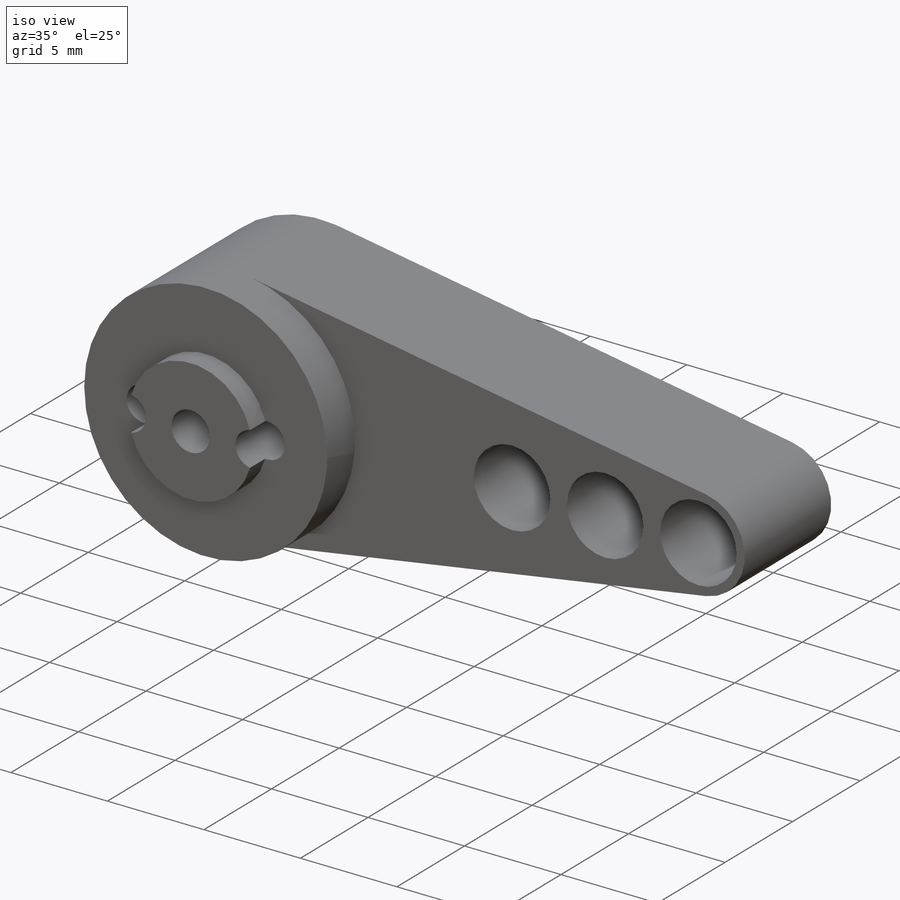
[diagram: iso view]
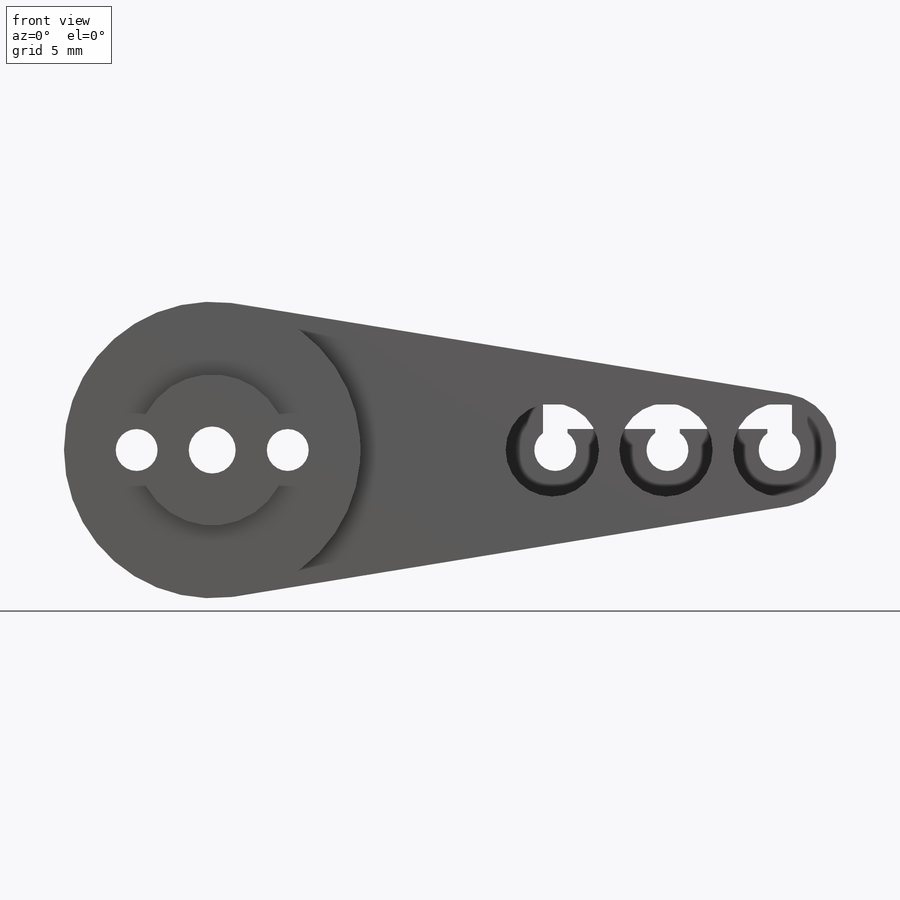
[diagram: front view]
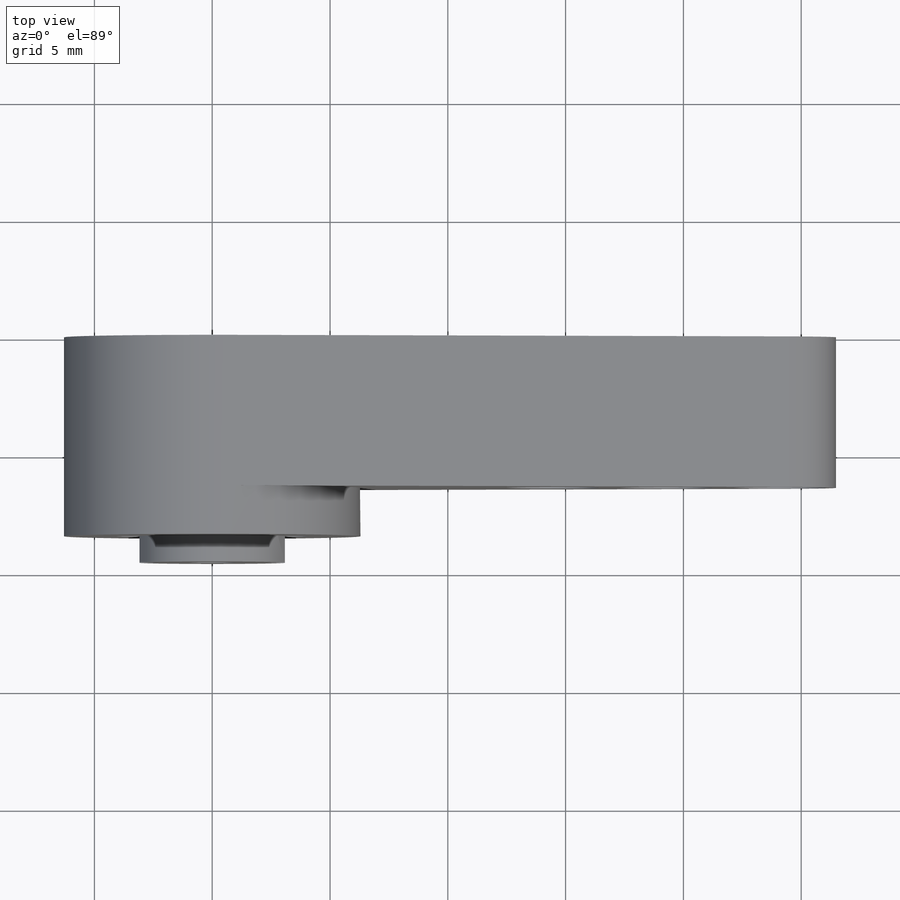
[diagram: top view]
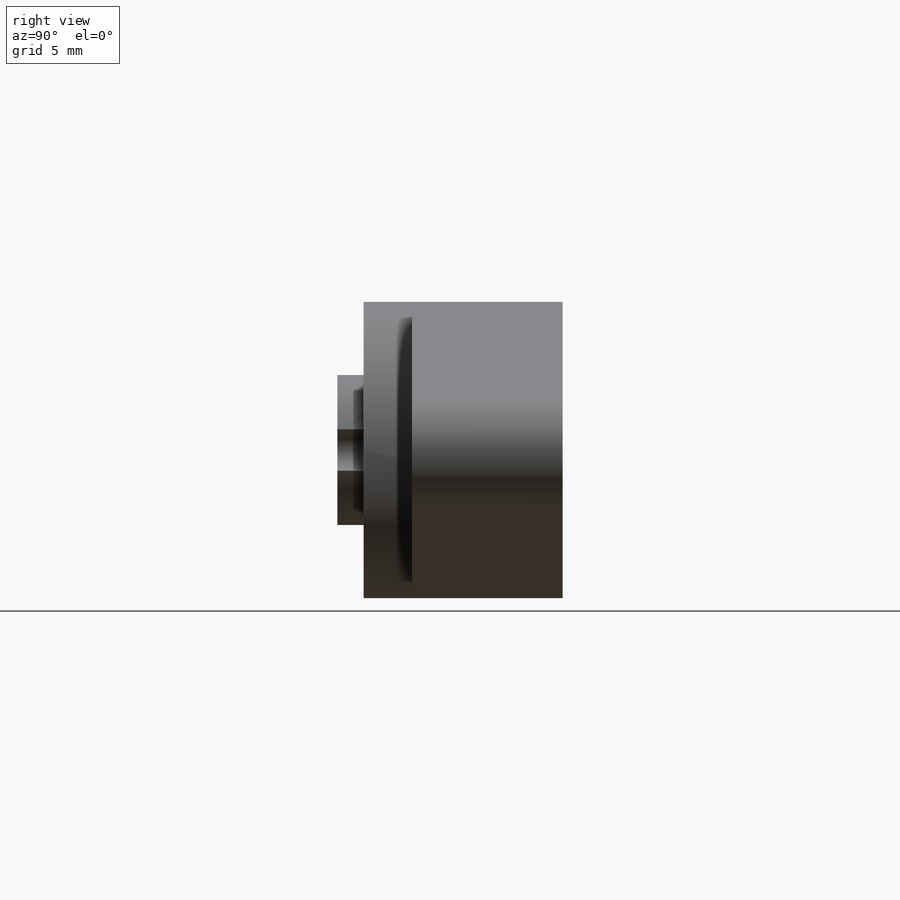
[diagram: right view]
SOLIDWORKS PART (.sldprt)
format: sldprt  version: not decoded by parser v0  size: 360,448 bytes
history: native  units: mm
features: sketch x11, extrude x3, thread x3, cut_extrude x3, hole x2, material x1 (+16 scaffold rows collapsed)
feature tree (39):
  scaffold x16  (default folders/planes/origin — collapsed)
  material  "Material <not specified>"
  sketch  "Sketch1"  dims[D1=12.5857mm D3=4.826mm D2=32.7914mm]
  extrude  "Extrude1"  Depth=6.3881mm
  sketch  "Sketch2"
  extrude  "Extrude2"  Depth=8.4455mm
  sketch  "Sketch3"  dims[D1=6.4135mm]
  extrude  "Extrude3"  Depth=9.5631mm
  hole  "#3-48 Tapped Hole1"  Diameter=1.9939mm Depth=9.563125mm
  sketch  "3DSketch1"
  sketch  "Sketch5"  dims[hole-wizard template sketch: 59 standard entries collapsed; hole parameters kept: c18.Thru Tap Drill Dia.=1.9939mm c18.Thru Tap Drill Depth=~9.563125mm]
  thread  "Hole Thread1"  Diameter=2.5146mm  [1 undecoded]
  sketch  "Sketch6"
  hole  "#2-56 Tapped Hole2"  Diameter=1.778mm Depth=9.563125mm
  sketch  "3DSketch2"
  sketch  "Sketch7"  dims[hole-wizard template sketch: 60 standard entries collapsed; hole parameters kept: c18.Thru Tap Drill Depth=~9.563125mm]
  thread  "Hole Thread2"  Diameter=2.1844mm  [1 undecoded]
  thread  "Hole Thread3"  Diameter=2.1844mm  [1 undecoded]
  sketch  "Sketch8"  dims[D1=3.9624mm D2=3.9624mm]
  cut_extrude  "Extrude4"  Depth=1.27mm
  sketch  "Sketch9"  dims[D1=1.778mm]
  cut_extrude  "Extrude5"  [1 undecoded]
  sketch  "Sketch10"  dims[D1=1.0414mm D2=0.5207mm D3=0.5207mm]
  cut_extrude  "Extrude6"  [1 undecoded]
decode coverage: 16 of 22 modeling features carry decoded parameters
note: ~ marks probable driven/reference dimensions
note: 5 parameter values undecoded
note: suppression state not decoded; provenance and decode notes live in map.json
